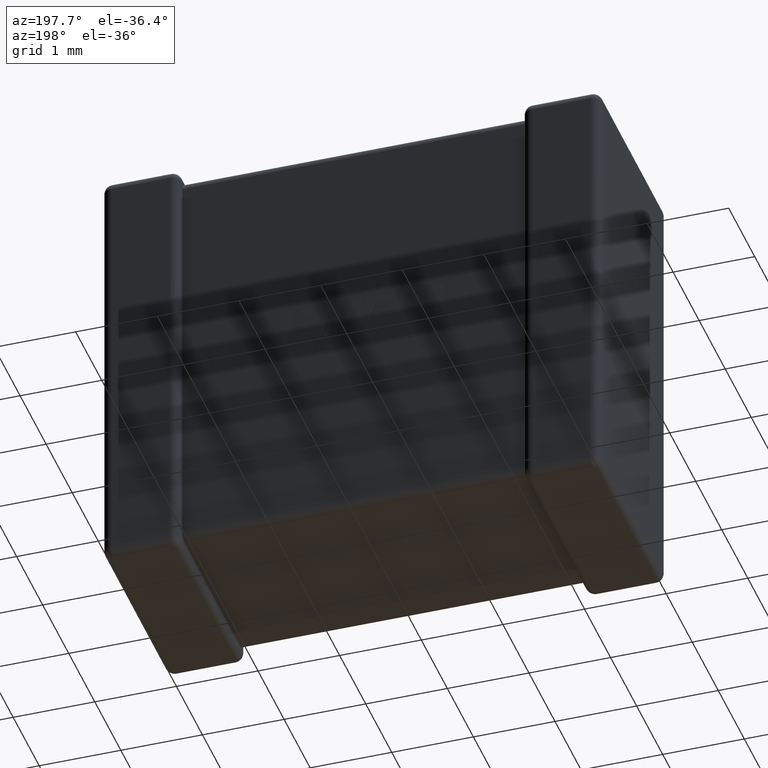
[diagram: clean part render]
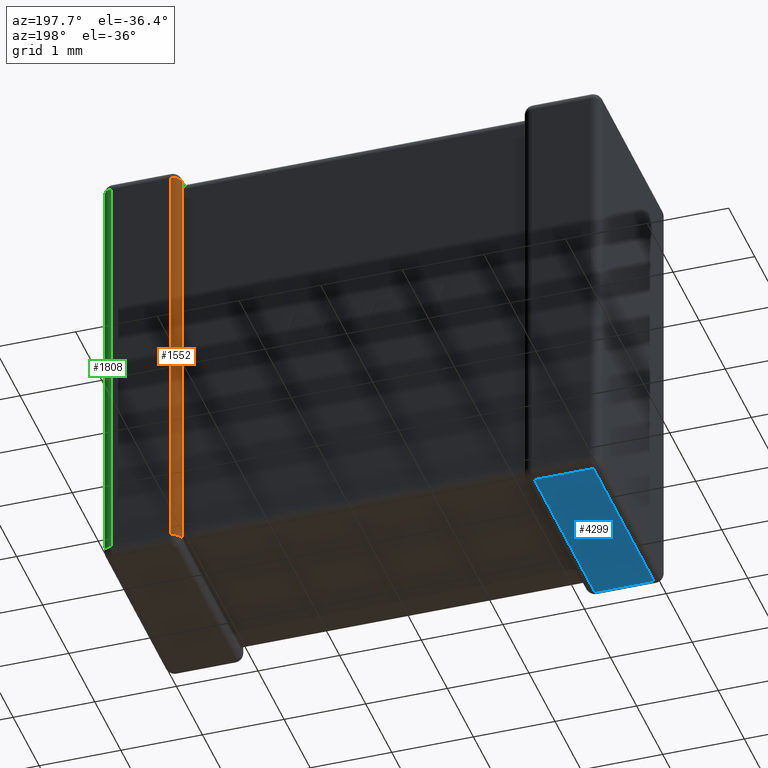
[diagram: same view with three faces highlighted in distinct colors, each labeled with its STEP entity id]
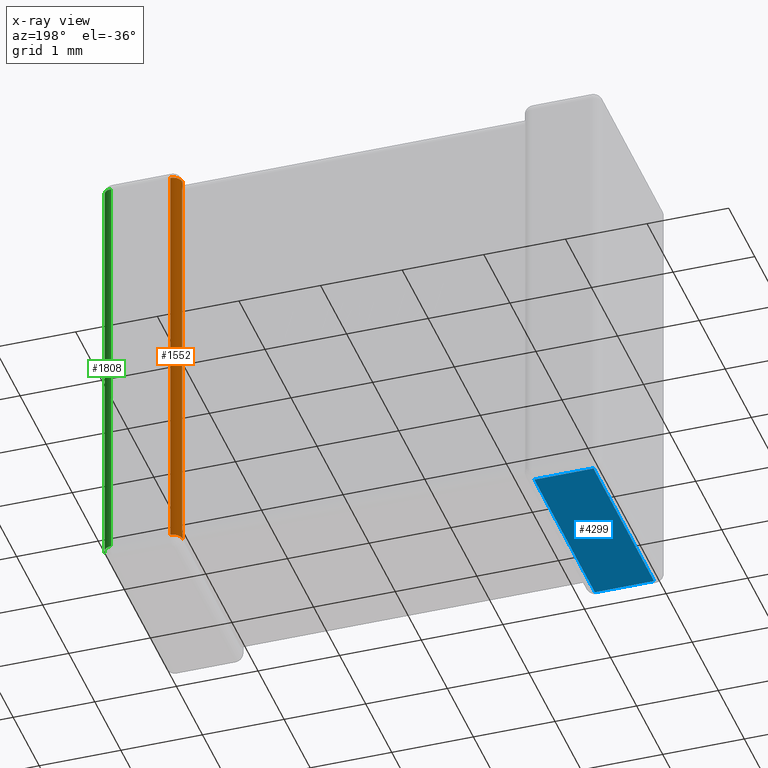
[diagram: x-ray of the same camera — body ghosted, the three highlighted faces saturated]
A machine part, auxiliary view with three faces highlighted in distinct colors.
The next image is the same camera in x-ray (body ghosted, the three faces saturated) — at least one of them is partly hidden behind the body in this view.
Their STEP definitions:

[orange] entity #1552 — the highlighted cylindrical surface (edge-blend (fillet) strip) has radius 0.1123 mm, axis along (-0, 0, 1).
#92 = B_SPLINE_CURVE_WITH_KNOTS ( 'NONE', 3,
 ( #3314, #1123, #3277, #415, #2920, #4019, #2204, #4376, #2940, #3677 ),
 .UNSPECIFIED., .F., .F.,
 ( 4, 3, 3, 4 ),
 ( 1.735570302229820800E-018, 3.737793887600315900E-005, 7.483306597327578600E-005, 8.800504568266017800E-005 ),
 .UNSPECIFIED. ) ;
#94 = VERTEX_POINT ( 'NONE', #2052 ) ;
#100 = CYLINDRICAL_SURFACE ( 'NONE', #526, 0.1123199999999999500 ) ;
#188 = DIRECTION ( 'NONE',  ( -0.0000000000000000000, 0.0000000000000000000, 1.000000000000000000 ) ) ;
#338 = CARTESIAN_POINT ( 'NONE',  ( 5.149997222547606100, 2.437218356280759700, -5.187100840322657700 ) ) ;
#344 = CARTESIAN_POINT ( 'NONE',  ( 5.154925775900062000, 2.404782233662872100, -5.254782233662872700 ) ) ;
#386 = ORIENTED_EDGE ( 'NONE', *, *, #1029, .T. ) ;
#415 = CARTESIAN_POINT ( 'NONE',  ( 5.150172311762158700, 2.431460802068762000, -0.1877834917502306800 ) ) ;
#424 = B_SPLINE_CURVE_WITH_KNOTS ( 'NONE', 3,
 ( #3568, #1414, #3946, #3892, #1738, #4245, #1005, #338, #1769, #2439 ),
 .UNSPECIFIED., .F., .F.,
 ( 4, 3, 3, 4 ),
 ( 0.0000000000000000000, 3.535348412143753700E-005, 7.052049924266337300E-005, 8.790586026857354600E-005 ),
 .UNSPECIFIED. ) ;
#427 = CIRCLE ( 'NONE', #2492, 0.1123199999999999500 ) ;
#517 = EDGE_LOOP ( 'NONE', ( #4449, #386, #4589, #1195, #3821, #3051, #1546, #1877 ) ) ;
#526 = AXIS2_PLACEMENT_3D ( 'NONE', #3250, #2554, #1836 ) ;
#586 = CARTESIAN_POINT ( 'NONE',  ( 5.262319999999999900, 2.549999999999999800, -0.1123199999999999900 ) ) ;
#773 = CARTESIAN_POINT ( 'NONE',  ( 5.262319999999999900, 2.549999999999999800, -5.287679999999999900 ) ) ;
#853 = VECTOR ( 'NONE', #188, 1000.000000000000000 ) ;
#888 = CARTESIAN_POINT ( 'NONE',  ( 5.150000000000000400, 2.437679999999999400, -5.175359999999999500 ) ) ;
#1005 = CARTESIAN_POINT ( 'NONE',  ( 5.150008434677453700, 2.436303520868485300, -5.192890475672491800 ) ) ;
#1029 = EDGE_CURVE ( 'NONE', #94, #3872, #1960, .T. ) ;
#1087 = LINE ( 'NONE', #3801, #1478 ) ;
#1123 = CARTESIAN_POINT ( 'NONE',  ( 5.150000000000000400, 2.437679999999999400, -0.2121806870413389100 ) ) ;
#1170 = VERTEX_POINT ( 'NONE', #888 ) ;
#1195 = ORIENTED_EDGE ( 'NONE', *, *, #2404, .T. ) ;
#1253 = CARTESIAN_POINT ( 'NONE',  ( 5.154925775900062000, 2.404782233662872100, -5.254782233662872700 ) ) ;
#1292 = CARTESIAN_POINT ( 'NONE',  ( 5.154925775900062000, 2.404782233662873500, -0.1452177663371270700 ) ) ;
#1324 = EDGE_CURVE ( 'NONE', #94, #2203, #3399, .T. ) ;
#1329 = CARTESIAN_POINT ( 'NONE',  ( 5.150000000000000400, 2.437679999999999800, -0.1123199999999990900 ) ) ;
#1414 = CARTESIAN_POINT ( 'NONE',  ( 5.152431037062773300, 2.412926268094174500, -5.246638199231569800 ) ) ;
#1478 = VECTOR ( 'NONE', #3077, 1000.000000000000000 ) ;
#1529 = AXIS2_PLACEMENT_3D ( 'NONE', #3819, #4155, #2014 ) ;
#1546 = ORIENTED_EDGE ( 'NONE', *, *, #4454, .F. ) ;
#1552 = ADVANCED_FACE ( 'NONE', ( #2043 ), #100, .T. ) ;
#1690 = CARTESIAN_POINT ( 'NONE',  ( 5.150000000000000400, 2.426509739103874800, -0.1234902608961258000 ) ) ;
#1738 = CARTESIAN_POINT ( 'NONE',  ( 5.150086068518851900, 2.430746604300920500, -5.215943630607955400 ) ) ;
#1754 = VERTEX_POINT ( 'NONE', #586 ) ;
#1755 = CARTESIAN_POINT ( 'NONE',  ( 5.150000000000000400, 2.426509739103873500, -5.276509739103872200 ) ) ;
#1764 = LINE ( 'NONE', #2302, #853 ) ;
#1769 = CARTESIAN_POINT ( 'NONE',  ( 5.150000000000000400, 2.437679999999999400, -5.181221478228865300 ) ) ;
#1824 = VERTEX_POINT ( 'NONE', #2414 ) ;
#1836 = DIRECTION ( 'NONE',  ( 1.000000000000000000, 0.0000000000000000000, 0.0000000000000000000 ) ) ;
#1877 = ORIENTED_EDGE ( 'NONE', *, *, #2304, .F. ) ;
#1960 =( BOUNDED_CURVE ( )  B_SPLINE_CURVE ( 3, ( #2512, #1755, #3990, #344 ),
 .UNSPECIFIED., .F., .F. ) 
 B_SPLINE_CURVE_WITH_KNOTS ( ( 4, 4 ),
 ( 1.570796326794900600, 1.868047688116109400 ),
 .UNSPECIFIED. ) 
 CURVE ( )  GEOMETRIC_REPRESENTATION_ITEM ( )  RATIONAL_B_SPLINE_CURVE ( ( 1.000000000000000000, 0.9926503465430337500, 0.9926503465430337500, 1.000000000000000000 ) ) 
 REPRESENTATION_ITEM ( '' )  );
#2014 = DIRECTION ( 'NONE',  ( -1.000000000000000000, 0.0000000000000000000, 0.0000000000000000000 ) ) ;
#2026 = CARTESIAN_POINT ( 'NONE',  ( 5.151654082231209100, 2.415462624527664500, -0.1345373754723360700 ) ) ;
#2043 = FACE_OUTER_BOUND ( 'NONE', #517, .T. ) ;
#2052 = CARTESIAN_POINT ( 'NONE',  ( 5.150000000000000400, 2.437679999999999800, -5.287679999999999000 ) ) ;
#2192 = VERTEX_POINT ( 'NONE', #2216 ) ;
#2203 = VERTEX_POINT ( 'NONE', #773 ) ;
#2204 = CARTESIAN_POINT ( 'NONE',  ( 5.152629779276082000, 2.413517262623243700, -0.1550405786893564700 ) ) ;
#2216 = CARTESIAN_POINT ( 'NONE',  ( 5.154925775900062000, 2.404782233662873500, -0.1452177663371270700 ) ) ;
#2302 = CARTESIAN_POINT ( 'NONE',  ( 5.262319999999999900, 2.549999999999999800, 0.0000000000000000000 ) ) ;
#2304 = EDGE_CURVE ( 'NONE', #2203, #1754, #1764, .T. ) ;
#2404 = EDGE_CURVE ( 'NONE', #1170, #1824, #1087, .T. ) ;
#2414 = CARTESIAN_POINT ( 'NONE',  ( 5.150000000000000400, 2.437679999999999400, -0.2246400000000007800 ) ) ;
#2439 = CARTESIAN_POINT ( 'NONE',  ( 5.150000000000000400, 2.437679999999999400, -5.175359999999999500 ) ) ;
#2492 = AXIS2_PLACEMENT_3D ( 'NONE', #3993, #3594, #4289 ) ;
#2512 = CARTESIAN_POINT ( 'NONE',  ( 5.150000000000000400, 2.437679999999999800, -5.287679999999999000 ) ) ;
#2551 = EDGE_CURVE ( 'NONE', #3872, #1170, #424, .T. ) ;
#2554 = DIRECTION ( 'NONE',  ( -0.0000000000000000000, 0.0000000000000000000, 1.000000000000000000 ) ) ;
#2826 = VERTEX_POINT ( 'NONE', #4196 ) ;
#2910 =( BOUNDED_CURVE ( )  B_SPLINE_CURVE ( 3, ( #1329, #1690, #2026, #1292 ),
 .UNSPECIFIED., .F., .F. ) 
 B_SPLINE_CURVE_WITH_KNOTS ( ( 4, 4 ),
 ( 1.570796326794888800, 1.868047688116096800 ),
 .UNSPECIFIED. ) 
 CURVE ( )  GEOMETRIC_REPRESENTATION_ITEM ( )  RATIONAL_B_SPLINE_CURVE ( ( 1.000000000000000000, 0.9926503465430337500, 0.9926503465430337500, 1.000000000000000000 ) ) 
 REPRESENTATION_ITEM ( '' )  );
#2920 = CARTESIAN_POINT ( 'NONE',  ( 5.150399240127526900, 2.427368716263961000, -0.1760033854232484500 ) ) ;
#2940 = CARTESIAN_POINT ( 'NONE',  ( 5.153984155148903000, 2.407856139314828800, -0.1482916719885591100 ) ) ;
#3017 = EDGE_CURVE ( 'NONE', #1824, #2192, #92, .T. ) ;
#3051 = ORIENTED_EDGE ( 'NONE', *, *, #3363, .F. ) ;
#3077 = DIRECTION ( 'NONE',  ( -0.0000000000000000000, -0.0000000000000000000, 1.000000000000000000 ) ) ;
#3250 = CARTESIAN_POINT ( 'NONE',  ( 5.262319999999999900, 2.437679999999999800, 0.0000000000000000000 ) ) ;
#3277 = CARTESIAN_POINT ( 'NONE',  ( 5.149945626467078900, 2.435548504708505500, -0.1995509800254688100 ) ) ;
#3314 = CARTESIAN_POINT ( 'NONE',  ( 5.150000000000000400, 2.437679999999999400, -0.2246400000000007800 ) ) ;
#3363 = EDGE_CURVE ( 'NONE', #2826, #2192, #2910, .T. ) ;
#3399 = CIRCLE ( 'NONE', #1529, 0.1123199999999999500 ) ;
#3568 = CARTESIAN_POINT ( 'NONE',  ( 5.154925775900062000, 2.404782233662872100, -5.254782233662872700 ) ) ;
#3594 = DIRECTION ( 'NONE',  ( -7.360257803776686400E-015, 0.0000000000000000000, 1.000000000000000000 ) ) ;
#3677 = CARTESIAN_POINT ( 'NONE',  ( 5.154925775900062000, 2.404782233662873500, -0.1452177663371270700 ) ) ;
#3801 = CARTESIAN_POINT ( 'NONE',  ( 5.150000000000000400, 2.437679999999999400, -5.400000000000000400 ) ) ;
#3819 = CARTESIAN_POINT ( 'NONE',  ( 5.262319999999999900, 2.437679999999999800, -5.287679999999999900 ) ) ;
#3821 = ORIENTED_EDGE ( 'NONE', *, *, #3017, .T. ) ;
#3872 = VERTEX_POINT ( 'NONE', #1253 ) ;
#3892 = CARTESIAN_POINT ( 'NONE',  ( 5.150671414421466900, 2.425417221427712500, -5.226392684038422900 ) ) ;
#3946 = CARTESIAN_POINT ( 'NONE',  ( 5.151258765606986100, 2.420069581109934200, -5.236877533923819600 ) ) ;
#3990 = CARTESIAN_POINT ( 'NONE',  ( 5.151654082231209100, 2.415462624527663100, -5.265462624527662800 ) ) ;
#3993 = CARTESIAN_POINT ( 'NONE',  ( 5.262319999999999900, 2.437679999999999800, -0.1123199999999999900 ) ) ;
#4019 = CARTESIAN_POINT ( 'NONE',  ( 5.150942924539804400, 2.421174982254357600, -0.1647401363566847200 ) ) ;
#4155 = DIRECTION ( 'NONE',  ( 0.0000000000000000000, 0.0000000000000000000, -1.000000000000000000 ) ) ;
#4196 = CARTESIAN_POINT ( 'NONE',  ( 5.150000000000000400, 2.437679999999999800, -0.1123199999999990900 ) ) ;
#4245 = CARTESIAN_POINT ( 'NONE',  ( 5.150030899689774300, 2.434470524900060900, -5.204490789906627100 ) ) ;
#4289 = DIRECTION ( 'NONE',  ( 1.000000000000000000, 0.0000000000000000000, 7.360257803776688000E-015 ) ) ;
#4376 = CARTESIAN_POINT ( 'NONE',  ( 5.153231340801570900, 2.410786387578708100, -0.1515815489451595700 ) ) ;
#4449 = ORIENTED_EDGE ( 'NONE', *, *, #1324, .F. ) ;
#4454 = EDGE_CURVE ( 'NONE', #1754, #2826, #427, .T. ) ;
#4589 = ORIENTED_EDGE ( 'NONE', *, *, #2551, .T. ) ;

[blue] entity #4299 — the highlighted planar face has unit normal (0, 0, 1).
#3 = DIRECTION ( 'NONE',  ( -3.861118847882852900E-015, -1.000000000000000000, 0.0000000000000000000 ) ) ;
#68 = EDGE_CURVE ( 'NONE', #3988, #2219, #4505, .T. ) ;
#77 = ORIENTED_EDGE ( 'NONE', *, *, #3937, .T. ) ;
#82 = ORIENTED_EDGE ( 'NONE', *, *, #68, .T. ) ;
#371 = ORIENTED_EDGE ( 'NONE', *, *, #3823, .T. ) ;
#484 = CARTESIAN_POINT ( 'NONE',  ( 0.1123199999999999500, 2.437679999999999800, -5.400000000000000400 ) ) ;
#732 = AXIS2_PLACEMENT_3D ( 'NONE', #3796, #882, #3404 ) ;
#882 = DIRECTION ( 'NONE',  ( 0.0000000000000000000, 0.0000000000000000000, 1.000000000000000000 ) ) ;
#997 = VECTOR ( 'NONE', #2008, 1000.000000000000000 ) ;
#1111 = VERTEX_POINT ( 'NONE', #484 ) ;
#1518 = DIRECTION ( 'NONE',  ( 0.0000000000000000000, 1.000000000000000000, -0.0000000000000000000 ) ) ;
#1671 = CARTESIAN_POINT ( 'NONE',  ( 6.100000000000000500, 2.437679999999999800, -5.400000000000000400 ) ) ;
#1778 = LINE ( 'NONE', #2959, #4557 ) ;
#1876 = FACE_OUTER_BOUND ( 'NONE', #2727, .T. ) ;
#1888 = VECTOR ( 'NONE', #3, 1000.000000000000000 ) ;
#1980 = CARTESIAN_POINT ( 'NONE',  ( 6.100000000000000500, 0.1123200000000000000, -5.400000000000000400 ) ) ;
#2008 = DIRECTION ( 'NONE',  ( -1.000000000000000000, -0.0000000000000000000, 0.0000000000000000000 ) ) ;
#2098 = ORIENTED_EDGE ( 'NONE', *, *, #3676, .T. ) ;
#2183 = CARTESIAN_POINT ( 'NONE',  ( 0.8376799999999916500, 2.031844293559092900E-014, -5.400000000000000400 ) ) ;
#2219 = VERTEX_POINT ( 'NONE', #3716 ) ;
#2228 = LINE ( 'NONE', #1671, #2340 ) ;
#2340 = VECTOR ( 'NONE', #3512, 1000.000000000000000 ) ;
#2727 = EDGE_LOOP ( 'NONE', ( #77, #2098, #82, #371 ) ) ;
#2959 = CARTESIAN_POINT ( 'NONE',  ( 0.1123199999999999500, 2.549999999999999800, -5.400000000000000400 ) ) ;
#3354 = LINE ( 'NONE', #2183, #1888 ) ;
#3404 = DIRECTION ( 'NONE',  ( 1.000000000000000000, 0.0000000000000000000, -0.0000000000000000000 ) ) ;
#3477 = PLANE ( 'NONE',  #732 ) ;
#3512 = DIRECTION ( 'NONE',  ( 1.000000000000000000, -0.0000000000000000000, -0.0000000000000000000 ) ) ;
#3676 = EDGE_CURVE ( 'NONE', #4380, #3988, #3354, .T. ) ;
#3716 = CARTESIAN_POINT ( 'NONE',  ( 0.1123199999999999500, 0.1123200000000000000, -5.400000000000000400 ) ) ;
#3796 = CARTESIAN_POINT ( 'NONE',  ( 6.100000000000000500, 0.0000000000000000000, -5.400000000000000400 ) ) ;
#3823 = EDGE_CURVE ( 'NONE', #2219, #1111, #1778, .T. ) ;
#3841 = CARTESIAN_POINT ( 'NONE',  ( 0.8376799999999921000, 0.1123200000000000000, -5.400000000000000400 ) ) ;
#3889 = CARTESIAN_POINT ( 'NONE',  ( 0.8376800000000010900, 2.437679999999999800, -5.400000000000000400 ) ) ;
#3937 = EDGE_CURVE ( 'NONE', #1111, #4380, #2228, .T. ) ;
#3988 = VERTEX_POINT ( 'NONE', #3841 ) ;
#4299 = ADVANCED_FACE ( 'NONE', ( #1876 ), #3477, .F. ) ;
#4380 = VERTEX_POINT ( 'NONE', #3889 ) ;
#4505 = LINE ( 'NONE', #1980, #997 ) ;
#4557 = VECTOR ( 'NONE', #1518, 1000.000000000000000 ) ;

[green] entity #1808 — the highlighted cylindrical surface (edge-blend (fillet) strip) has radius 0.1123 mm, axis along (0, 0, 1).
#29 = VERTEX_POINT ( 'NONE', #1593 ) ;
#235 = AXIS2_PLACEMENT_3D ( 'NONE', #3371, #3763, #1542 ) ;
#239 = AXIS2_PLACEMENT_3D ( 'NONE', #1282, #3130, #1647 ) ;
#563 = EDGE_CURVE ( 'NONE', #1926, #29, #1105, .T. ) ;
#588 = ORIENTED_EDGE ( 'NONE', *, *, #3161, .F. ) ;
#609 = LINE ( 'NONE', #2932, #2351 ) ;
#776 = ORIENTED_EDGE ( 'NONE', *, *, #563, .T. ) ;
#792 = VECTOR ( 'NONE', #3358, 1000.000000000000000 ) ;
#1105 = CIRCLE ( 'NONE', #235, 0.1123199999999999500 ) ;
#1259 = VERTEX_POINT ( 'NONE', #3441 ) ;
#1282 = CARTESIAN_POINT ( 'NONE',  ( 5.987680000000000100, 2.437679999999999800, 0.0000000000000000000 ) ) ;
#1335 = CARTESIAN_POINT ( 'NONE',  ( 5.987680000000000100, 2.549999999999999800, -0.1123199999999999900 ) ) ;
#1436 = CARTESIAN_POINT ( 'NONE',  ( 5.987680000000000100, 2.549999999999999800, -5.287679999999999900 ) ) ;
#1438 = FACE_OUTER_BOUND ( 'NONE', #2705, .T. ) ;
#1508 = VERTEX_POINT ( 'NONE', #1436 ) ;
#1542 = DIRECTION ( 'NONE',  ( 1.000000000000000000, 0.0000000000000000000, 0.0000000000000000000 ) ) ;
#1586 = DIRECTION ( 'NONE',  ( -1.000000000000000000, 0.0000000000000000000, 0.0000000000000000000 ) ) ;
#1593 = CARTESIAN_POINT ( 'NONE',  ( 6.100000000000000500, 2.437679999999999800, -0.1123199999999999900 ) ) ;
#1647 = DIRECTION ( 'NONE',  ( 1.000000000000000000, 0.0000000000000000000, 0.0000000000000000000 ) ) ;
#1808 = ADVANCED_FACE ( 'NONE', ( #1438 ), #3069, .T. ) ;
#1830 = DIRECTION ( 'NONE',  ( 0.0000000000000000000, 0.0000000000000000000, 1.000000000000000000 ) ) ;
#1926 = VERTEX_POINT ( 'NONE', #1335 ) ;
#2047 = LINE ( 'NONE', #4455, #792 ) ;
#2269 = CIRCLE ( 'NONE', #2854, 0.1123199999999999500 ) ;
#2351 = VECTOR ( 'NONE', #1830, 1000.000000000000000 ) ;
#2646 = DIRECTION ( 'NONE',  ( -0.0000000000000000000, -0.0000000000000000000, 1.000000000000000000 ) ) ;
#2657 = EDGE_CURVE ( 'NONE', #1259, #1508, #2269, .T. ) ;
#2678 = ORIENTED_EDGE ( 'NONE', *, *, #3036, .F. ) ;
#2705 = EDGE_LOOP ( 'NONE', ( #3304, #588, #776, #2678 ) ) ;
#2854 = AXIS2_PLACEMENT_3D ( 'NONE', #4478, #2646, #1586 ) ;
#2932 = CARTESIAN_POINT ( 'NONE',  ( 6.100000000000000500, 2.437679999999999800, 0.0000000000000000000 ) ) ;
#3036 = EDGE_CURVE ( 'NONE', #1259, #29, #609, .T. ) ;
#3069 = CYLINDRICAL_SURFACE ( 'NONE', #239, 0.1123199999999999500 ) ;
#3130 = DIRECTION ( 'NONE',  ( 0.0000000000000000000, 0.0000000000000000000, 1.000000000000000000 ) ) ;
#3161 = EDGE_CURVE ( 'NONE', #1926, #1508, #2047, .T. ) ;
#3304 = ORIENTED_EDGE ( 'NONE', *, *, #2657, .T. ) ;
#3358 = DIRECTION ( 'NONE',  ( -0.0000000000000000000, -0.0000000000000000000, -1.000000000000000000 ) ) ;
#3371 = CARTESIAN_POINT ( 'NONE',  ( 5.987680000000000100, 2.437679999999999800, -0.1123199999999999900 ) ) ;
#3441 = CARTESIAN_POINT ( 'NONE',  ( 6.100000000000000500, 2.437679999999999800, -5.287679999999999900 ) ) ;
#3763 = DIRECTION ( 'NONE',  ( -0.0000000000000000000, -0.0000000000000000000, -1.000000000000000000 ) ) ;
#4455 = CARTESIAN_POINT ( 'NONE',  ( 5.987680000000000100, 2.549999999999999800, 0.0000000000000000000 ) ) ;
#4478 = CARTESIAN_POINT ( 'NONE',  ( 5.987680000000000100, 2.437679999999999800, -5.287679999999999900 ) ) ;